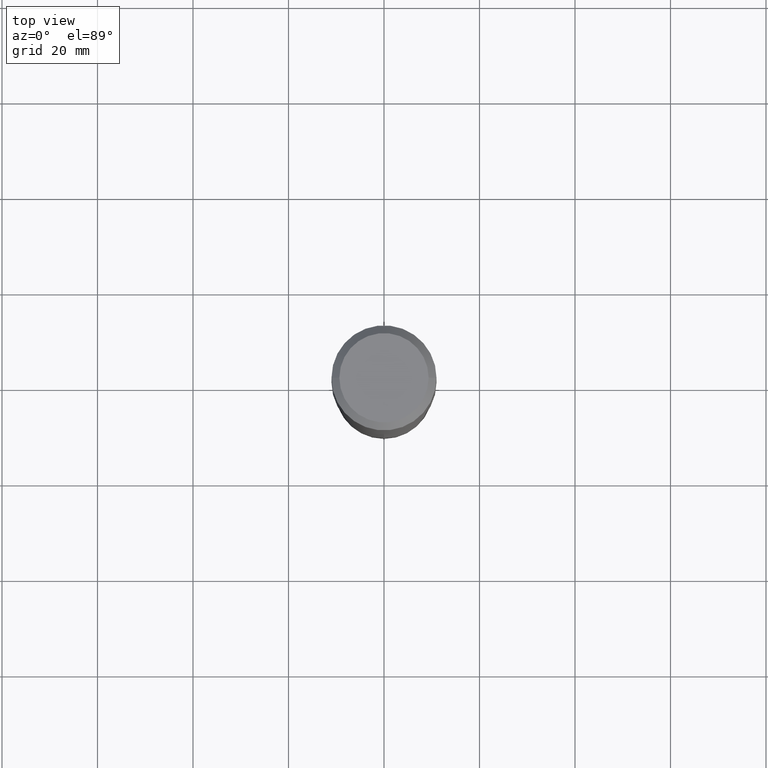
[diagram: clean part render]
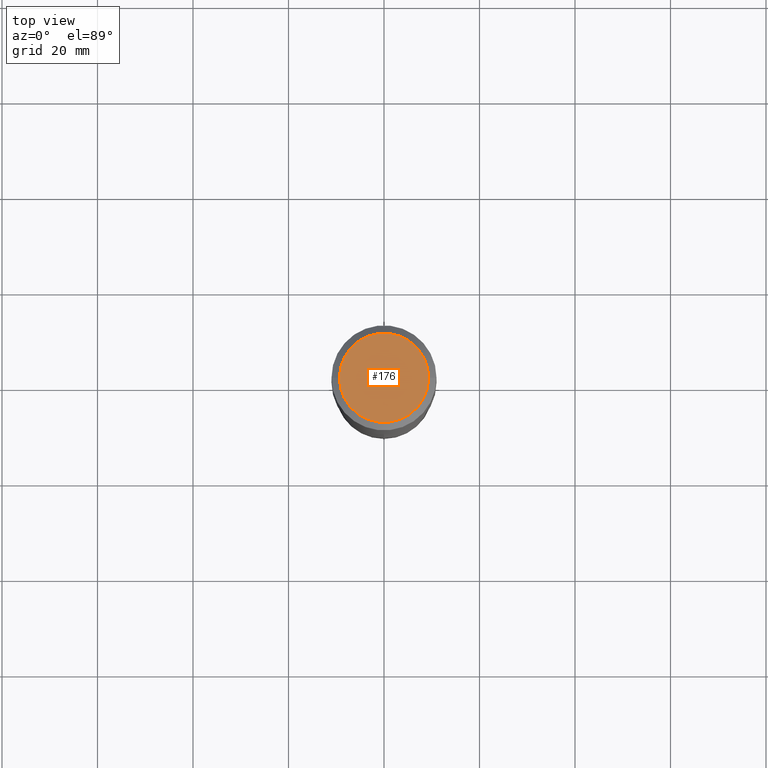
[diagram: same view with one face highlighted and labeled with its STEP entity id]
A machine part, top view. The second image highlights one B-rep face of the part: STEP entity #176.
In plain terms, the highlighted planar face has unit normal (0, -0, -1).
Its self-contained STEP definition (entity closure, byte-faithful):
#1 = EDGE_LOOP ( 'NONE', ( #347, #416 ) ) ;
#15 = CARTESIAN_POINT ( 'NONE',  ( 0.3680924999999999336, -2.861517208123791872E-15, 3.893152174491335652E-17 ) ) ;
#93 = VERTEX_POINT ( 'NONE', #97 ) ;
#97 = CARTESIAN_POINT ( 'NONE',  ( -0.3680924999999999336, 2.683775138970182009E-15, 3.893152174487599040E-17 ) ) ;
#99 = CARTESIAN_POINT ( 'NONE',  ( -9.520582200445749913E-46, 1.359286816650647833E-31, 3.893152174489436223E-17 ) ) ;
#107 = AXIS2_PLACEMENT_3D ( 'NONE', #273, #114, #242 ) ;
#114 = DIRECTION ( 'NONE',  ( -2.445468806185136597E-29, 3.491481338843145583E-15, 1.000000000000000000 ) ) ;
#127 = CIRCLE ( 'NONE', #107, 0.3680924999999999336 ) ;
#141 = EDGE_CURVE ( 'NONE', #414, #93, #258, .T. ) ;
#160 = DIRECTION ( 'NONE',  ( 2.438088387897960049E-29, -3.491481338843145188E-15, -1.000000000000000000 ) ) ;
#176 = ADVANCED_FACE ( 'NONE', ( #180 ), #300, .F. ) ;
#180 = FACE_OUTER_BOUND ( 'NONE', #1, .T. ) ;
#237 = CARTESIAN_POINT ( 'NONE',  ( -4.760291100222874956E-46, 6.796434083253239167E-32, 1.946576087244718112E-17 ) ) ;
#242 = DIRECTION ( 'NONE',  ( 1.000000000000000000, -6.982962677686267499E-15, 4.875824421662870534E-29 ) ) ;
#243 = EDGE_CURVE ( 'NONE', #93, #414, #127, .T. ) ;
#245 = AXIS2_PLACEMENT_3D ( 'NONE', #99, #264, #409 ) ;
#258 = CIRCLE ( 'NONE', #245, 0.3680924999999999336 ) ;
#264 = DIRECTION ( 'NONE',  ( -2.445468806185136597E-29, 3.491481338843145583E-15, 1.000000000000000000 ) ) ;
#273 = CARTESIAN_POINT ( 'NONE',  ( -9.520582200445749913E-46, 1.359286816650647833E-31, 3.893152174489436223E-17 ) ) ;
#300 = PLANE ( 'NONE',  #447 ) ;
#347 = ORIENTED_EDGE ( 'NONE', *, *, #243, .T. ) ;
#409 = DIRECTION ( 'NONE',  ( 1.000000000000000000, -6.982962677686267499E-15, 4.875824421662870534E-29 ) ) ;
#414 = VERTEX_POINT ( 'NONE', #15 ) ;
#416 = ORIENTED_EDGE ( 'NONE', *, *, #141, .T. ) ;
#447 = AXIS2_PLACEMENT_3D ( 'NONE', #237, #160, #452 ) ;
#452 = DIRECTION ( 'NONE',  ( -1.000000000000000000, 6.982962677686265922E-15, -4.876176775795935793E-29 ) ) ;